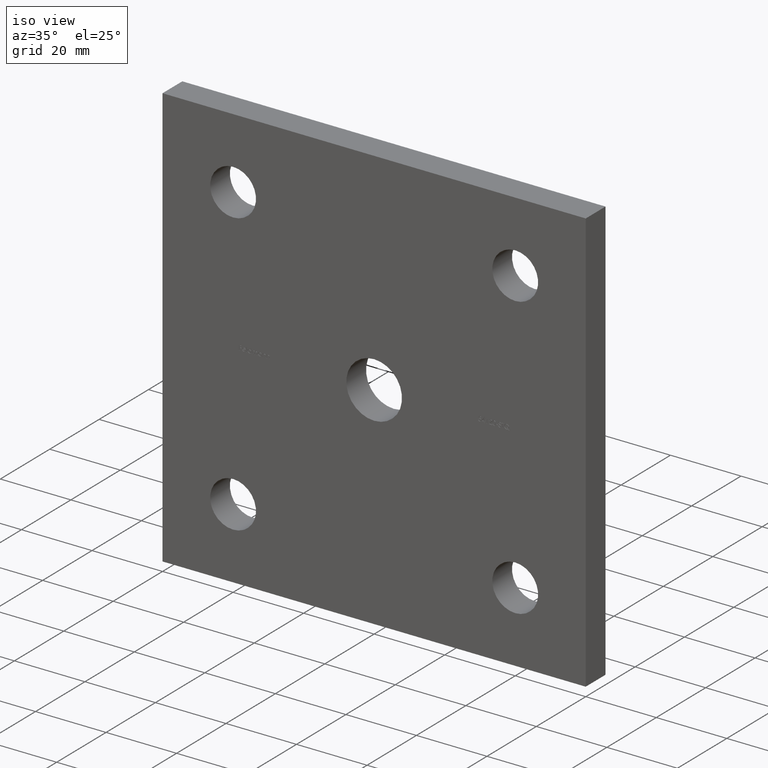
[diagram: clean part render]
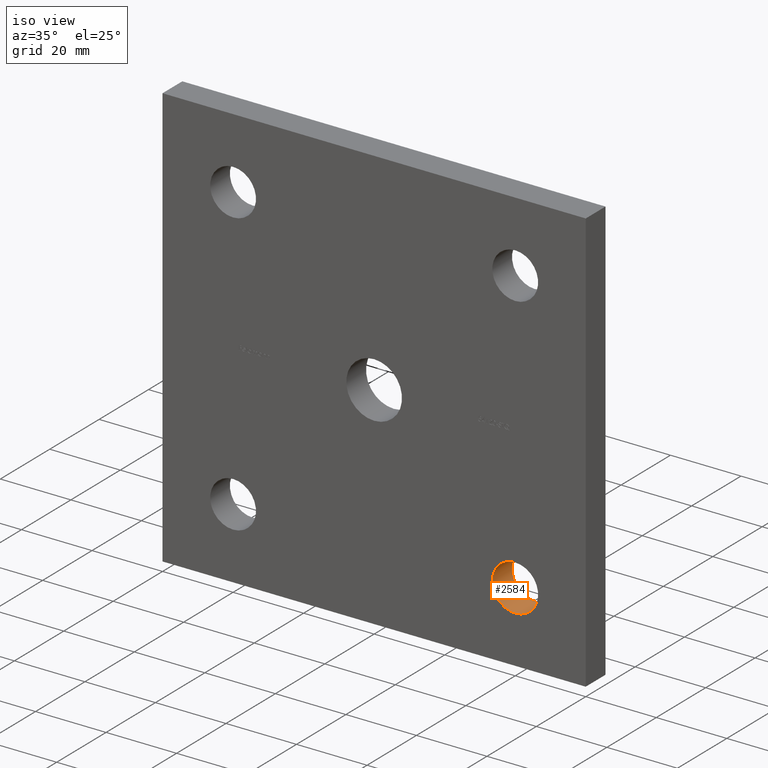
[diagram: same view with one face highlighted and labeled with its STEP entity id]
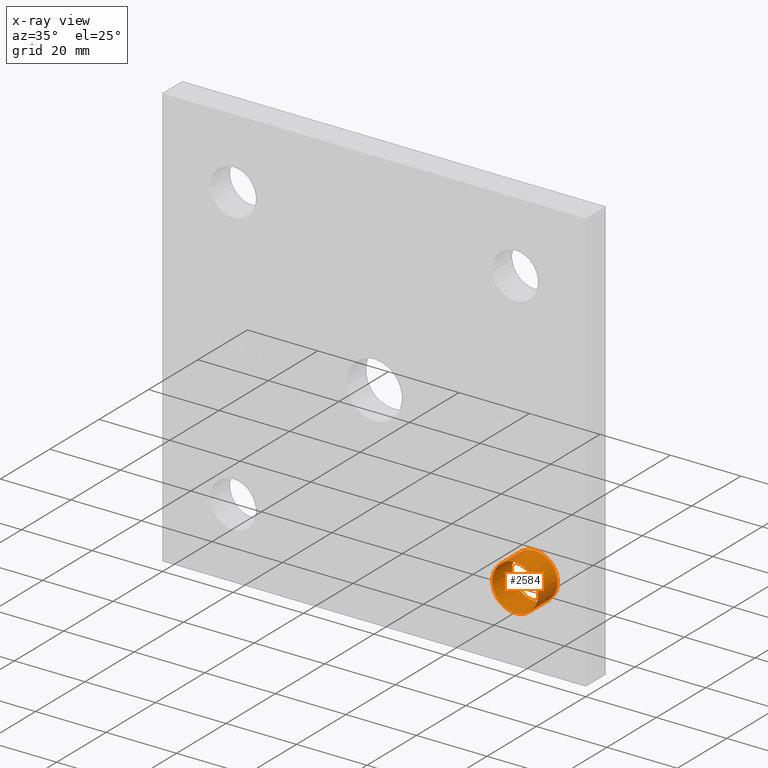
[diagram: x-ray of the same camera — body ghosted, the highlighted face saturated]
A machine part, iso view. The second image highlights one B-rep face of the part: STEP entity #2584.
The next image is the same camera in x-ray: the body ghosted, the highlighted face saturated — about 0% of this face is hidden behind the body in this view.
In plain terms, the highlighted cylindrical surface (bore or boss wall) has radius 6.5 mm, axis along (-0, 1, -0).
Its self-contained STEP definition (entity closure, byte-faithful):
#487 = EDGE_LOOP ( 'NONE', ( #7012 ) ) ;
#575 = CARTESIAN_POINT ( 'NONE',  ( 40.00000000000000000, 0.000000000000000000, -33.50000000000000000 ) ) ;
#716 = DIRECTION ( 'NONE',  ( 0.000000000000000000, 1.000000000000000000, 0.000000000000000000 ) ) ;
#1613 = CARTESIAN_POINT ( 'NONE',  ( 40.00000000000000000, 8.000000000000000000, -33.50000000000000000 ) ) ;
#1711 = ORIENTED_EDGE ( 'NONE', *, *, #9633, .F. ) ;
#2584 = ADVANCED_FACE ( 'NONE', ( #9262, #3296 ), #10291, .F. ) ;
#2627 = CARTESIAN_POINT ( 'NONE',  ( 40.00000000000000000, 0.000000000000000000, -40.00000000000000000 ) ) ;
#2886 = VERTEX_POINT ( 'NONE', #1613 ) ;
#3296 = FACE_OUTER_BOUND ( 'NONE', #487, .T. ) ;
#3837 = DIRECTION ( 'NONE',  ( -0.000000000000000000, 1.000000000000000000, -0.000000000000000000 ) ) ;
#4118 = AXIS2_PLACEMENT_3D ( 'NONE', #12194, #9234, #6438 ) ;
#4410 = CIRCLE ( 'NONE', #11411, 6.499999999999999112 ) ;
#5330 = EDGE_CURVE ( 'NONE', #2886, #2886, #9102, .T. ) ;
#5468 = AXIS2_PLACEMENT_3D ( 'NONE', #12381, #3837, #7050 ) ;
#6438 = DIRECTION ( 'NONE',  ( 0.000000000000000000, 0.000000000000000000, 1.000000000000000000 ) ) ;
#7012 = ORIENTED_EDGE ( 'NONE', *, *, #5330, .T. ) ;
#7050 = DIRECTION ( 'NONE',  ( 0.000000000000000000, 0.000000000000000000, 1.000000000000000000 ) ) ;
#7880 = EDGE_LOOP ( 'NONE', ( #1711 ) ) ;
#9102 = CIRCLE ( 'NONE', #4118, 6.499999999999999112 ) ;
#9234 = DIRECTION ( 'NONE',  ( 0.000000000000000000, 1.000000000000000000, 0.000000000000000000 ) ) ;
#9262 = FACE_OUTER_BOUND ( 'NONE', #7880, .T. ) ;
#9306 = DIRECTION ( 'NONE',  ( 0.000000000000000000, 0.000000000000000000, 1.000000000000000000 ) ) ;
#9633 = EDGE_CURVE ( 'NONE', #11833, #11833, #4410, .T. ) ;
#10291 = CYLINDRICAL_SURFACE ( 'NONE', #5468, 6.499999999999999112 ) ;
#11411 = AXIS2_PLACEMENT_3D ( 'NONE', #2627, #716, #9306 ) ;
#11833 = VERTEX_POINT ( 'NONE', #575 ) ;
#12194 = CARTESIAN_POINT ( 'NONE',  ( 40.00000000000000000, 8.000000000000000000, -40.00000000000000000 ) ) ;
#12381 = CARTESIAN_POINT ( 'NONE',  ( 40.00000000000000000, 0.000000000000000000, -40.00000000000000000 ) ) ;